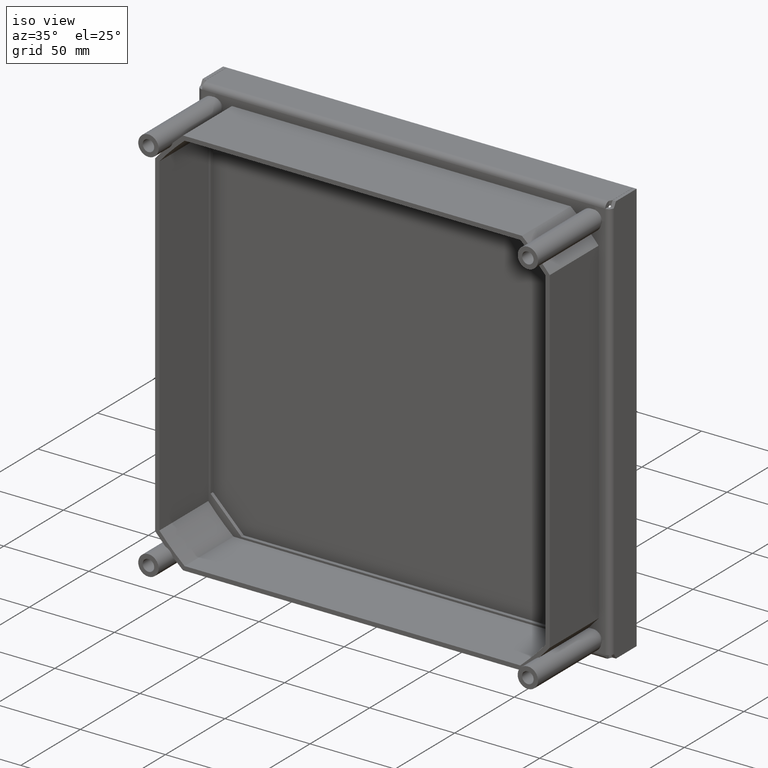
[diagram: clean part render]
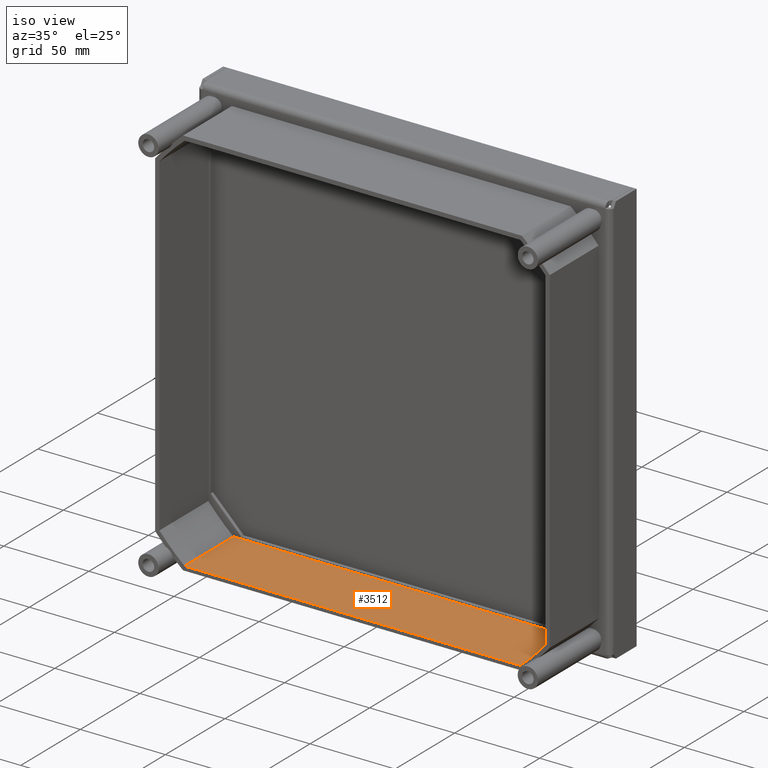
[diagram: same view with one face highlighted and labeled with its STEP entity id]
A machine part, iso view. The second image highlights one B-rep face of the part: STEP entity #3512.
In plain terms, the highlighted planar face has unit normal (0, 0, 1).
Its self-contained STEP definition (entity closure, byte-faithful):
#3093=DIRECTION('',(-1.E0,0.E0,0.E0));
#3094=VECTOR('',#3093,1.972916622668E2);
#3095=CARTESIAN_POINT('',(9.864583113340E1,0.E0,-1.13E2));
#3096=LINE('',#3095,#3094);
#3147=DIRECTION('',(1.E0,0.E0,0.E0));
#3148=VECTOR('',#3147,1.972916622668E2);
#3149=CARTESIAN_POINT('',(-9.864583113340E1,-4.1E1,-1.13E2));
#3150=LINE('',#3149,#3148);
#3219=DIRECTION('',(0.E0,1.E0,0.E0));
#3220=VECTOR('',#3219,4.1E1);
#3221=CARTESIAN_POINT('',(9.864583113340E1,-4.1E1,-1.13E2));
#3222=LINE('',#3221,#3220);
#3239=DIRECTION('',(0.E0,-1.E0,0.E0));
#3240=VECTOR('',#3239,4.1E1);
#3241=CARTESIAN_POINT('',(-9.864583113340E1,0.E0,-1.13E2));
#3242=LINE('',#3241,#3240);
#3271=CARTESIAN_POINT('',(9.864583113340E1,0.E0,-1.13E2));
#3272=VERTEX_POINT('',#3271);
#3273=CARTESIAN_POINT('',(-9.864583113340E1,0.E0,-1.13E2));
#3274=VERTEX_POINT('',#3273);
#3295=CARTESIAN_POINT('',(-9.864583113340E1,-4.1E1,-1.13E2));
#3296=CARTESIAN_POINT('',(9.864583113340E1,-4.1E1,-1.13E2));
#3297=VERTEX_POINT('',#3295);
#3298=VERTEX_POINT('',#3296);
#3499=CARTESIAN_POINT('',(-9.864583113340E1,0.E0,-1.13E2));
#3500=DIRECTION('',(0.E0,0.E0,1.E0));
#3501=DIRECTION('',(1.E0,0.E0,0.E0));
#3502=AXIS2_PLACEMENT_3D('',#3499,#3500,#3501);
#3503=PLANE('',#3502);
#3504=ORIENTED_EDGE('',*,*,#3342,.F.);
#3506=ORIENTED_EDGE('',*,*,#3505,.F.);
#3507=ORIENTED_EDGE('',*,*,#3390,.F.);
#3509=ORIENTED_EDGE('',*,*,#3508,.F.);
#3510=EDGE_LOOP('',(#3504,#3506,#3507,#3509));
#3511=FACE_OUTER_BOUND('',#3510,.F.);
#3342=EDGE_CURVE('',#3272,#3274,#3096,.T.);
#3390=EDGE_CURVE('',#3297,#3298,#3150,.T.);
#3505=EDGE_CURVE('',#3298,#3272,#3222,.T.);
#3508=EDGE_CURVE('',#3274,#3297,#3242,.T.);
#3512=ADVANCED_FACE('',(#3511),#3503,.T.);